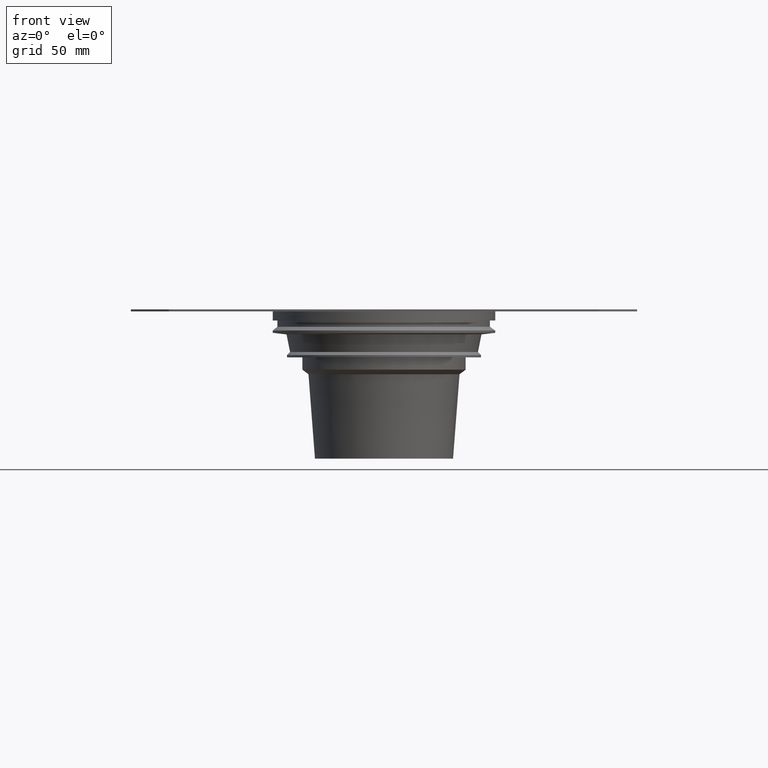
[diagram: clean part render]
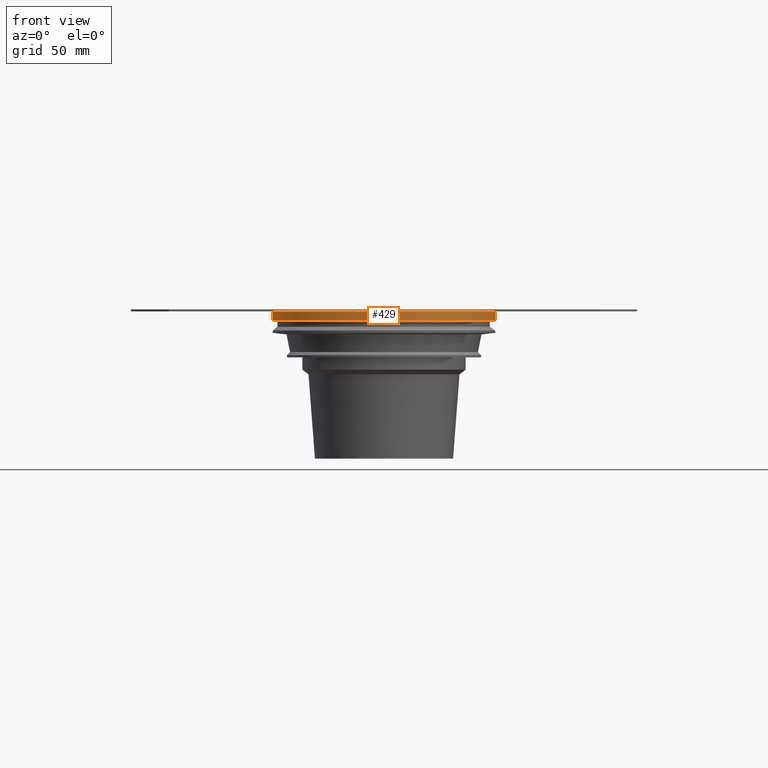
[diagram: same view with one face highlighted and labeled with its STEP entity id]
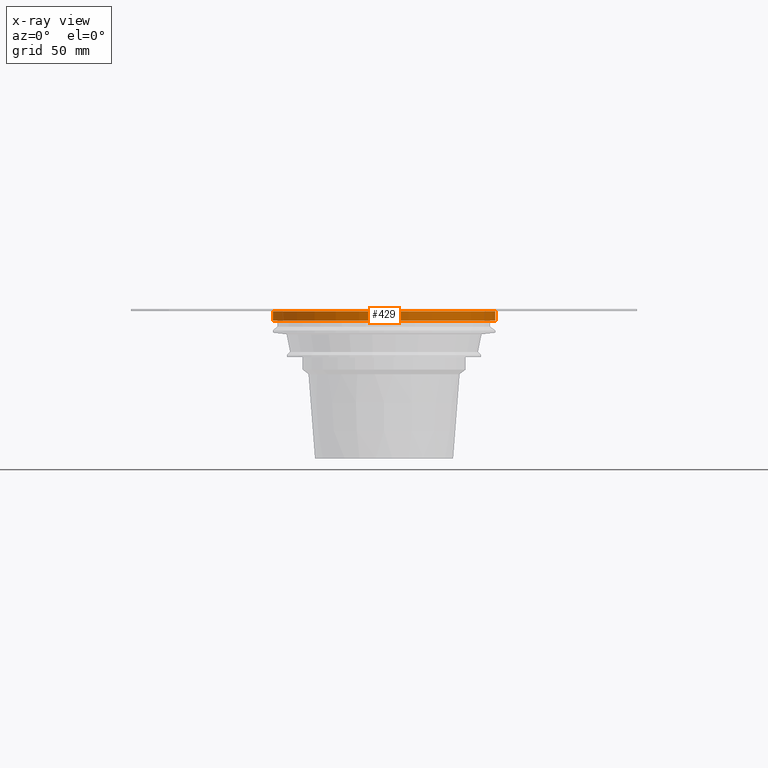
[diagram: x-ray of the same camera — body ghosted, the highlighted face saturated]
A machine part, front view. The second image highlights one B-rep face of the part: STEP entity #429.
The next image is the same camera in x-ray: the body ghosted, the highlighted face saturated — about 0% of this face is hidden behind the body in this view.
In plain terms, the highlighted cylindrical surface (bore or boss wall) has radius 72.5 mm, axis along (0, 0, -1).
Its self-contained STEP definition (entity closure, byte-faithful):
#37=CIRCLE('',#481,72.5);
#38=CIRCLE('',#483,72.5);
#56=CYLINDRICAL_SURFACE('',#482,72.5);
#104=ORIENTED_EDGE('',*,*,#186,.T.);
#105=ORIENTED_EDGE('',*,*,#185,.F.);
#185=EDGE_CURVE('',#224,#224,#37,.T.);
#186=EDGE_CURVE('',#225,#225,#38,.F.);
#224=VERTEX_POINT('',#721);
#225=VERTEX_POINT('',#724);
#308=EDGE_LOOP('',(#104));
#309=EDGE_LOOP('',(#105));
#364=FACE_BOUND('',#308,.T.);
#365=FACE_BOUND('',#309,.T.);
#429=ADVANCED_FACE('',(#364,#365),#56,.T.);
#481=AXIS2_PLACEMENT_3D('',#720,#583,#584);
#482=AXIS2_PLACEMENT_3D('',#722,#585,#586);
#483=AXIS2_PLACEMENT_3D('',#723,#587,#588);
#583=DIRECTION('',(0.,0.,-1.));
#584=DIRECTION('',(-1.,0.,0.));
#585=DIRECTION('',(0.,0.,-1.));
#586=DIRECTION('',(-1.,0.,0.));
#587=DIRECTION('',(0.,0.,1.));
#588=DIRECTION('',(1.,0.,0.));
#720=CARTESIAN_POINT('',(0.,0.,-6.00000000000001));
#721=CARTESIAN_POINT('',(-72.5,0.,-6.00000000000001));
#722=CARTESIAN_POINT('',(0.,0.,-50.));
#723=CARTESIAN_POINT('',(0.,0.,0.));
#724=CARTESIAN_POINT('',(72.5,0.,0.));